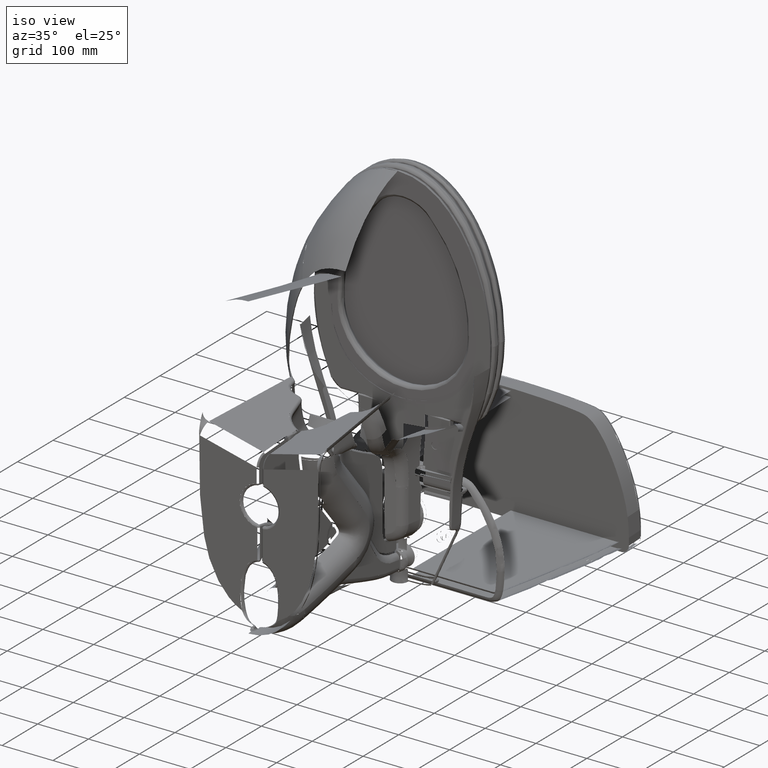
[diagram: clean part render]
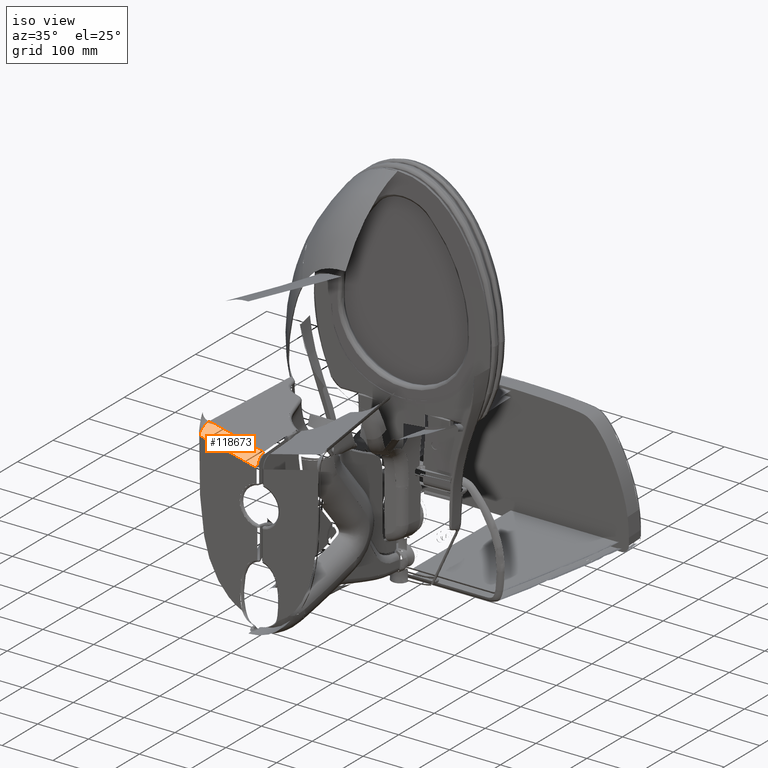
[diagram: same view with one face highlighted and labeled with its STEP entity id]
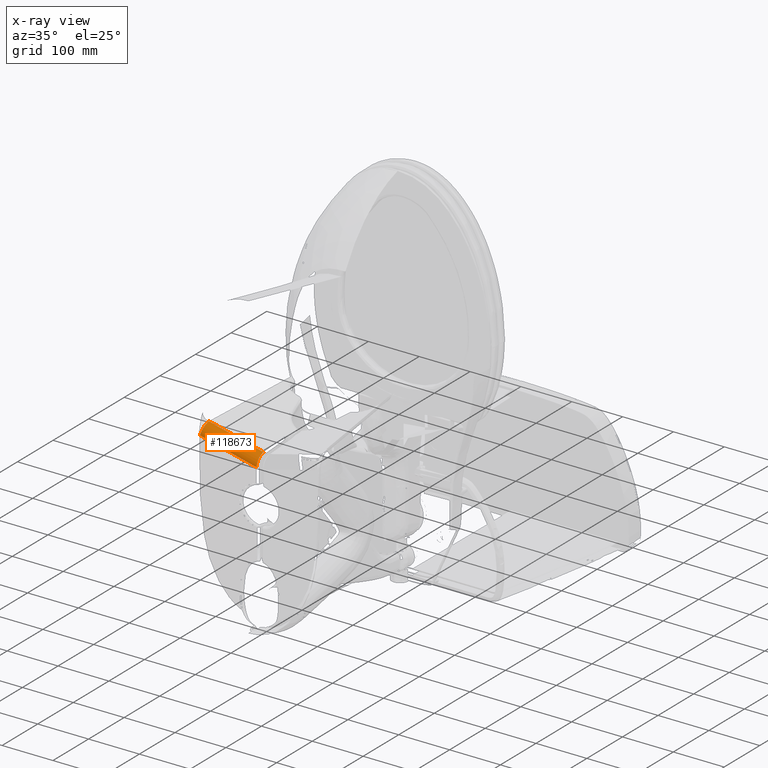
[diagram: x-ray of the same camera — body ghosted, the highlighted face saturated]
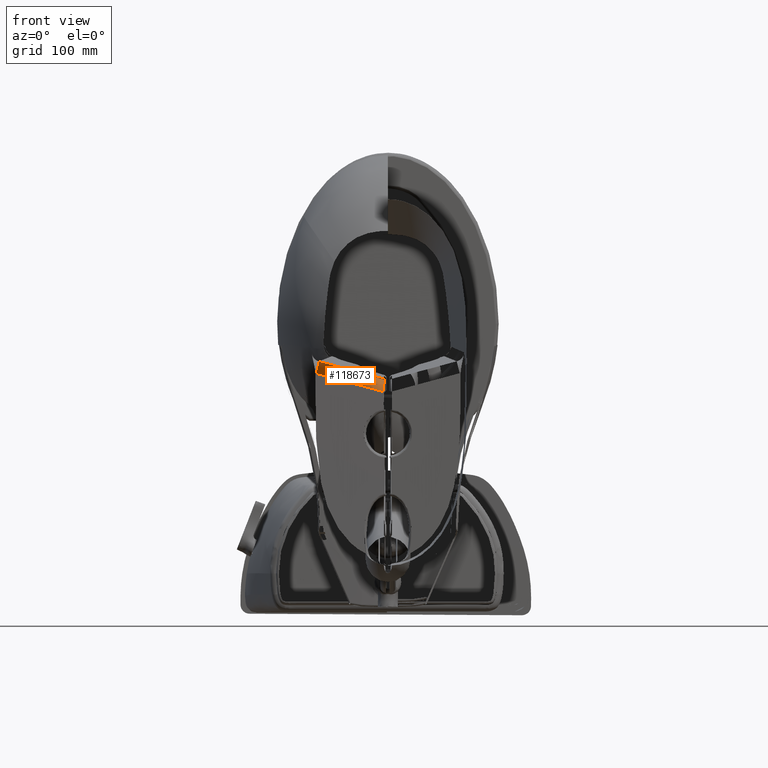
[diagram: same view with one face highlighted and labeled with its STEP entity id]
A machine part, iso view. The second image highlights one B-rep face of the part: STEP entity #118673.
The next image is the same camera in x-ray: the body ghosted, the highlighted face saturated — about 0% of this face is hidden behind the body in this view.
A second angle (front view) of the same face is appended — the face is thin or edge-on in the first view.
In plain terms, the highlighted cylindrical surface (edge-blend (fillet) strip) has radius 20 mm, axis along (0.965, 0.0334, -0.2602).
Its self-contained STEP definition (entity closure, byte-faithful):
#3016 = B_SPLINE_CURVE_WITH_KNOTS ( 'NONE', 3,
 ( #132750, #28767, #31089, #119209, #227316, #49331, #230433, #229663, #12815, #139831, #48581, #228866, #174801, #66012, #102478, #155783, #47048, #11280, #176352, #10495, #157324, #138260, #46252, #174039, #191570, #29566, #47815, #154969, #136694, #156551, #175580, #30311, #67559, #193126, #173251, #64441, #194663, #85735, #100158, #84209, #118403, #82655, #100928, #65231, #9698, #120764, #12051, #209921, #228092, #211479, #137479, #192354, #66773, #193906, #83439 ),
 .UNSPECIFIED., .F., .F.,
 ( 4, 2, 2, 2, 1, 1, 2, 2, 2, 2, 2, 1, 1, 1, 2, 2, 2, 2, 2, 1, 1, 1, 1, 2, 2, 2, 2, 1, 1, 1, 1, 2, 2, 4 ),
 ( 2.183317085009551200E-010, 0.1250000001910904200, 0.1875000001774702300, 0.2187500001706602600, 0.2343750001672554000, 0.2421875001655526500, 0.2460937501647009800, 0.2500000001638492700, 0.3750000001365825200, 0.4375000001229492100, 0.4687500001161327100, 0.4843750001127247200, 0.4921875001110206900, 0.4960937501101689900, 0.4980468751097426000, 0.5000000001093162200, 0.6250000000820388200, 0.6875000000683995100, 0.7187500000615798500, 0.7343750000581704700, 0.7421875000564665000, 0.7460937500556145100, 0.7480468750551884100, 0.7490234375549753600, 0.7500000000547623100, 0.8125000000410881300, 0.8437500000342504900, 0.8593750000308308900, 0.8671875000291212600, 0.8710937500282663900, 0.8730468750278390600, 0.8740234375276253500, 0.8750000000274118500, 1.000000000000000000 ),
 .UNSPECIFIED. ) ;
#9698 = CARTESIAN_POINT ( 'NONE',  ( -0.2645694664000612900, 2.869026878843592000, 1.564830520234104000 ) ) ;
#10495 = CARTESIAN_POINT ( 'NONE',  ( -0.2508148831899108000, 2.480031810871111000, 1.779988836990467100 ) ) ;
#10628 = CARTESIAN_POINT ( 'NONE',  ( -2.996803972832290600, 1.512678761787700000, 2.177014638895324900 ) ) ;
#11280 = CARTESIAN_POINT ( 'NONE',  ( -0.2500917194786099800, 2.458219156430740500, 1.802635993817682800 ) ) ;
#12051 = CARTESIAN_POINT ( 'NONE',  ( -0.2653536262464931700, 2.890193233638268700, 1.560235947631639600 ) ) ;
#12815 = CARTESIAN_POINT ( 'NONE',  ( -0.2458592382547253300, 2.319964019728928000, 2.012406030843695500 ) ) ;
#18816 = DIRECTION ( 'NONE',  ( -0.9649702345844311000, -0.2602243229631993100, -0.03340281581562036500 ) ) ;
#19542 = AXIS2_PLACEMENT_3D ( 'NONE', #163298, #54532, #203863 ) ;
#23403 = EDGE_CURVE ( 'NONE', #95011, #196654, #117795, .T. ) ;
#24332 = ORIENTED_EDGE ( 'NONE', *, *, #23403, .T. ) ;
#28767 = CARTESIAN_POINT ( 'NONE',  ( -0.2445414955223493000, 2.258237755391300000, 2.224319537762818700 ) ) ;
#29566 = CARTESIAN_POINT ( 'NONE',  ( -0.2515607287023807200, 2.502339301879728400, 1.758522955926852000 ) ) ;
#30311 = CARTESIAN_POINT ( 'NONE',  ( -0.2586585382578144900, 2.706746410373363200, 1.620840492394423700 ) ) ;
#31089 = CARTESIAN_POINT ( 'NONE',  ( -0.2446006649102494500, 2.266150741585096600, 2.176523634378012300 ) ) ;
#41067 = CARTESIAN_POINT ( 'NONE',  ( -0.2715045671368313000, 3.053944491262604800, 1.543627426190062700 ) ) ;
#42227 = CARTESIAN_POINT ( 'NONE',  ( -4.428190023311975300, 1.417709265864415900, 1.576291606933217800 ) ) ;
#43939 = VERTEX_POINT ( 'NONE', #92654 ) ;
#46252 = CARTESIAN_POINT ( 'NONE',  ( -0.2514419404738421100, 2.498796241066204300, 1.761823293305242500 ) ) ;
#47048 = CARTESIAN_POINT ( 'NONE',  ( -0.2492749545240378100, 2.433289102936189600, 1.830579922806309300 ) ) ;
#47815 = CARTESIAN_POINT ( 'NONE',  ( -0.2527119619438627500, 2.536659942949104800, 1.726774640540504700 ) ) ;
#48581 = CARTESIAN_POINT ( 'NONE',  ( -0.2460357451742254700, 2.326365541553788100, 1.998559585533006900 ) ) ;
#49331 = CARTESIAN_POINT ( 'NONE',  ( -0.2454522957814469800, 2.304684736985381600, 2.048929534642089000 ) ) ;
#52930 = CARTESIAN_POINT ( 'NONE',  ( -4.637498440473201800, 1.876563304743710900, 1.392496869022165500 ) ) ;
#53067 = ORIENTED_EDGE ( 'NONE', *, *, #157831, .T. ) ;
#54532 = DIRECTION ( 'NONE',  ( 0.9649702345838974100, 0.2602243229659719200, 0.03340281580944683100 ) ) ;
#57525 = B_SPLINE_CURVE_WITH_KNOTS ( 'NONE', 3,
 ( #138394, #10628, #211596, #228212 ),
 .UNSPECIFIED., .F., .F.,
 ( 4, 4 ),
 ( 4.601362605934332600E-009, 0.9999999953986372600 ),
 .UNSPECIFIED. ) ;
#60468 = CARTESIAN_POINT ( 'NONE',  ( -4.372880199845447200, 1.141591162501948600, 2.129380982088518300 ) ) ;
#64441 = CARTESIAN_POINT ( 'NONE',  ( -0.2602326769642169800, 2.750351265738140100, 1.602043428107463800 ) ) ;
#65231 = CARTESIAN_POINT ( 'NONE',  ( -0.2638621869775655300, 2.849883795919226200, 1.569426010831640500 ) ) ;
#66012 = CARTESIAN_POINT ( 'NONE',  ( -0.2466788469539623100, 2.349439320359789600, 1.950516323796398300 ) ) ;
#66773 = CARTESIAN_POINT ( 'NONE',  ( -0.2673902144364624400, 2.945045509207830900, 1.549793122310676500 ) ) ;
#67559 = CARTESIAN_POINT ( 'NONE',  ( -0.2593123574913188100, 2.724880958452993600, 1.612695263733932000 ) ) ;
#75804 = ORIENTED_EDGE ( 'NONE', *, *, #151575, .T. ) ;
#76578 = ORIENTED_EDGE ( 'NONE', *, *, #131375, .T. ) ;
#77043 = CARTESIAN_POINT ( 'NONE',  ( -4.502122369403427800, 1.711940501130924600, 1.419999380331671100 ) ) ;
#82077 = VECTOR ( 'NONE', #18816, 39.37007874015748900 ) ;
#82655 = CARTESIAN_POINT ( 'NONE',  ( -0.2620645221810060700, 2.800906340751447000, 1.583353805017832400 ) ) ;
#83439 = CARTESIAN_POINT ( 'NONE',  ( -0.2715045671368313000, 3.053944491262604800, 1.543627426190062700 ) ) ;
#84209 = CARTESIAN_POINT ( 'NONE',  ( -0.2604187999762125900, 2.755498171358274000, 1.600011312776101300 ) ) ;
#85735 = CARTESIAN_POINT ( 'NONE',  ( -0.2603743763648977400, 2.754269748261646300, 1.600493378668302200 ) ) ;
#89871 = EDGE_LOOP ( 'NONE', ( #53067, #24332, #75804, #76578 ) ) ;
#92654 = CARTESIAN_POINT ( 'NONE',  ( -0.2446515188060718300, 2.254853960359545900, 2.272281952508961900 ) ) ;
#95011 = VERTEX_POINT ( 'NONE', #233271 ) ;
#95335 = CARTESIAN_POINT ( 'NONE',  ( -4.404515790349424100, 1.316538969870495700, 1.680496940545951100 ) ) ;
#96141 = CARTESIAN_POINT ( 'NONE',  ( -4.411788287737667100, 1.348252997856373500, 1.643536346230055600 ) ) ;
#100158 = CARTESIAN_POINT ( 'NONE',  ( -0.2604027697663715600, 2.755054898950401600, 1.600184981361703700 ) ) ;
#100928 = CARTESIAN_POINT ( 'NONE',  ( -0.2634031318168915100, 2.837415085172803100, 1.572743209450531100 ) ) ;
#102478 = CARTESIAN_POINT ( 'NONE',  ( -0.2474066938548402600, 2.374184010718357400, 1.909051814007130200 ) ) ;
#113619 = CARTESIAN_POINT ( 'NONE',  ( -4.526549308954027900, 1.804971826961676800, 1.400932600401181700 ) ) ;
#117500 = VERTEX_POINT ( 'NONE', #41067 ) ;
#117795 = B_SPLINE_CURVE_WITH_KNOTS ( 'NONE', 3,
 ( #168439, #186771, #113619, #77043, #205049, #130305, #185185, #204269, #42227, #96141, #95335, #169219, #131084, #166866, #184379, #202674, #150175, #60468 ),
 .UNSPECIFIED., .F., .F.,
 ( 4, 2, 2, 2, 2, 2, 2, 2, 4 ),
 ( 0.0000000000000000000, 0.1249999999999819900, 0.2499999999999639700, 0.3749999999999459300, 0.4999999999999279500, 0.6249999999999099600, 0.7499999999998918600, 0.8749999999998739900, 0.9999999999998561200 ),
 .UNSPECIFIED. ) ;
#118403 = CARTESIAN_POINT ( 'NONE',  ( -0.2612240811934330400, 2.777765942626098100, 1.591304800387817200 ) ) ;
#118673 = ADVANCED_FACE ( 'NONE', ( #186756 ), #172384, .F. ) ;
#119209 = CARTESIAN_POINT ( 'NONE',  ( -0.2449670310119078400, 2.284745024496139800, 2.106306062909595300 ) ) ;
#120764 = CARTESIAN_POINT ( 'NONE',  ( -0.2649277643432892400, 2.878708361878260300, 1.562627879233911000 ) ) ;
#130305 = CARTESIAN_POINT ( 'NONE',  ( -4.467783612218229700, 1.578101689773121300, 1.470622220833860400 ) ) ;
#131084 = CARTESIAN_POINT ( 'NONE',  ( -4.386916940055519900, 1.235656129781687700, 1.802164094283945400 ) ) ;
#131375 = EDGE_CURVE ( 'NONE', #43939, #117500, #3016, .T. ) ;
#132750 = CARTESIAN_POINT ( 'NONE',  ( -0.2446515188060718300, 2.254853960359545900, 2.272281952508961900 ) ) ;
#136694 = CARTESIAN_POINT ( 'NONE',  ( -0.2562044911433208900, 2.637983885900142300, 1.656895582337241100 ) ) ;
#137479 = CARTESIAN_POINT ( 'NONE',  ( -0.2657536119015068700, 2.900970004558828000, 1.558124837193979100 ) ) ;
#138260 = CARTESIAN_POINT ( 'NONE',  ( -0.2513064896903248700, 2.494752793797209400, 1.765632087997182300 ) ) ;
#138394 = CARTESIAN_POINT ( 'NONE',  ( -4.372880199845447200, 1.141591162501948600, 2.129380982088518300 ) ) ;
#139831 = CARTESIAN_POINT ( 'NONE',  ( -0.2459818085919341600, 2.324418676390842500, 2.002702774074643300 ) ) ;
#150175 = CARTESIAN_POINT ( 'NONE',  ( -4.372162071579953000, 1.145205294450230400, 2.080491478034194800 ) ) ;
#151575 = EDGE_CURVE ( 'NONE', #196654, #43939, #57525, .T. ) ;
#154969 = CARTESIAN_POINT ( 'NONE',  ( -0.2539927793677431700, 2.574659651197726400, 1.697107547361917700 ) ) ;
#155783 = CARTESIAN_POINT ( 'NONE',  ( -0.2487740011176574600, 2.417713453852738900, 1.849825630135815600 ) ) ;
#156551 = CARTESIAN_POINT ( 'NONE',  ( -0.2569889693714879100, 2.660141350319781100, 1.644209294522046100 ) ) ;
#157324 = CARTESIAN_POINT ( 'NONE',  ( -0.2510387744770282700, 2.486749010707185900, 1.773309024011015400 ) ) ;
#157831 = EDGE_CURVE ( 'NONE', #117500, #95011, #158890, .T. ) ;
#158890 = LINE ( 'NONE', #52930, #82077 ) ;
#163298 = CARTESIAN_POINT ( 'NONE',  ( -4.604822946322862300, 1.892720735893156400, 2.181501119460936200 ) ) ;
#166866 = CARTESIAN_POINT ( 'NONE',  ( -4.378879769918902400, 1.194473130457691200, 1.890789200892788000 ) ) ;
#168439 = CARTESIAN_POINT ( 'NONE',  ( -4.551890717076332700, 1.899649209347636900, 1.395460213293868700 ) ) ;
#169219 = CARTESIAN_POINT ( 'NONE',  ( -4.392079990533938300, 1.260239965565657300, 1.759811617975712000 ) ) ;
#172384 = CYLINDRICAL_SURFACE ( 'NONE', #19542, 0.7874015747881850700 ) ;
#173251 = CARTESIAN_POINT ( 'NONE',  ( -0.2600351412135724100, 2.744888100239193800, 1.604238485027076600 ) ) ;
#174039 = CARTESIAN_POINT ( 'NONE',  ( -0.2515003284524134400, 2.500538029277327400, 1.760197378639719800 ) ) ;
#174801 = CARTESIAN_POINT ( 'NONE',  ( -0.2460909282299336400, 2.328351619154075600, 1.994376566884867200 ) ) ;
#175580 = CARTESIAN_POINT ( 'NONE',  ( -0.2582328258564123300, 2.694904549926558300, 1.626515627617515000 ) ) ;
#176352 = CARTESIAN_POINT ( 'NONE',  ( -0.2503748093015578700, 2.466790063506463700, 1.793475503162959000 ) ) ;
#184379 = CARTESIAN_POINT ( 'NONE',  ( -4.376005813099408400, 1.177874801223418800, 1.937060035771420100 ) ) ;
#185185 = CARTESIAN_POINT ( 'NONE',  ( -4.457115924196200400, 1.535647123095897200, 1.493173596003660700 ) ) ;
#186756 = FACE_OUTER_BOUND ( 'NONE', #89871, .T. ) ;
#186771 = CARTESIAN_POINT ( 'NONE',  ( -4.539140447003122200, 1.852310038642841900, 1.395901568797907300 ) ) ;
#191570 = CARTESIAN_POINT ( 'NONE',  ( -0.2515393283740933200, 2.501701192696850200, 1.759114870996461900 ) ) ;
#192354 = CARTESIAN_POINT ( 'NONE',  ( -0.2657720157232374400, 2.901465658599793800, 1.558030811781039500 ) ) ;
#193126 = CARTESIAN_POINT ( 'NONE',  ( -0.2596430696673721600, 2.734041133342662600, 1.608714526164731100 ) ) ;
#193906 = CARTESIAN_POINT ( 'NONE',  ( -0.2692972318412968400, 2.995928551599708300, 1.543703833875181000 ) ) ;
#194663 = CARTESIAN_POINT ( 'NONE',  ( -0.2603318120617734700, 2.753092725321341300, 1.600956756311479500 ) ) ;
#196654 = VERTEX_POINT ( 'NONE', #228617 ) ;
#202674 = CARTESIAN_POINT ( 'NONE',  ( -4.372646929898376600, 1.153240633694980500, 2.031912135128138600 ) ) ;
#203863 = DIRECTION ( 'NONE',  ( -0.2603696169583872300, 0.9655090173400467900, 0.0000000000000000000 ) ) ;
#204269 = CARTESIAN_POINT ( 'NONE',  ( -4.437318929204875100, 1.455450098803726200, 1.546008824237750500 ) ) ;
#205049 = CARTESIAN_POINT ( 'NONE',  ( -4.490287062774553000, 1.666249271662073200, 1.434034742391861800 ) ) ;
#209921 = CARTESIAN_POINT ( 'NONE',  ( -0.2655684670830831800, 2.895982743666513800, 1.559085877049865500 ) ) ;
#211479 = CARTESIAN_POINT ( 'NONE',  ( -0.2657226970725542500, 2.900137356311638400, 1.558283563900639200 ) ) ;
#211596 = CARTESIAN_POINT ( 'NONE',  ( -1.620727745819165600, 1.883766361073566200, 2.224648295702139400 ) ) ;
#227316 = CARTESIAN_POINT ( 'NONE',  ( -0.2451348084996397000, 2.292061621425221000, 2.083146440265129000 ) ) ;
#228092 = CARTESIAN_POINT ( 'NONE',  ( -0.2656763580434076700, 2.898889218346645700, 1.558522496115941800 ) ) ;
#228212 = CARTESIAN_POINT ( 'NONE',  ( -0.2446515188060718300, 2.254853960359545900, 2.272281952508961900 ) ) ;
#228617 = CARTESIAN_POINT ( 'NONE',  ( -4.372880199845447200, 1.141591162501948600, 2.129380982088518300 ) ) ;
#228866 = CARTESIAN_POINT ( 'NONE',  ( -0.2460720128012455800, 2.327671819299517600, 1.995800919848297300 ) ) ;
#229663 = CARTESIAN_POINT ( 'NONE',  ( -0.2457598961248723700, 2.316297217804142800, 2.020782746394950800 ) ) ;
#230433 = CARTESIAN_POINT ( 'NONE',  ( -0.2455690552033757700, 2.309166999162548500, 2.037610976654060200 ) ) ;
#233271 = CARTESIAN_POINT ( 'NONE',  ( -4.551890717076332700, 1.899649209347636900, 1.395460213293868700 ) ) ;